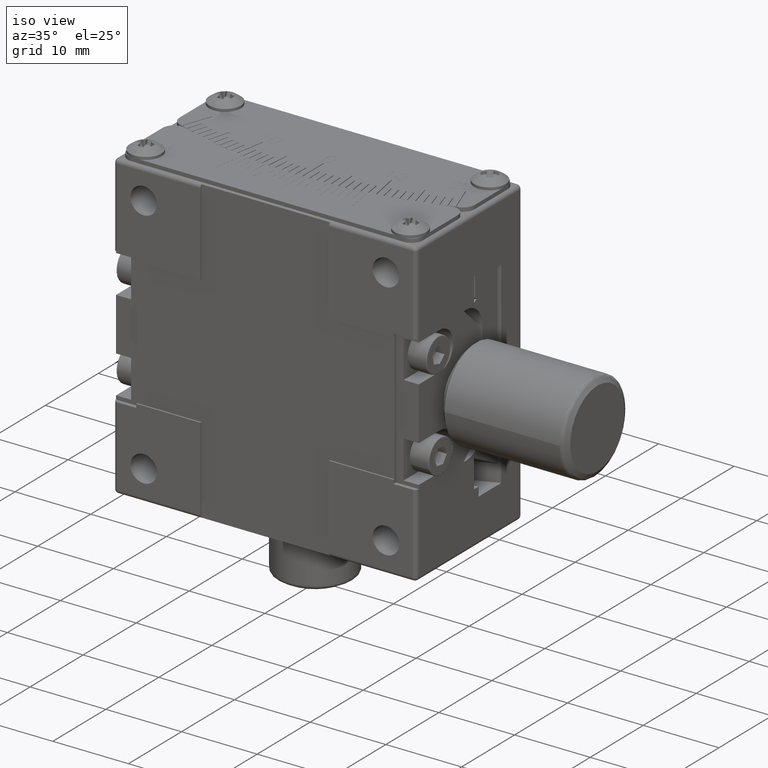
[diagram: clean part render]
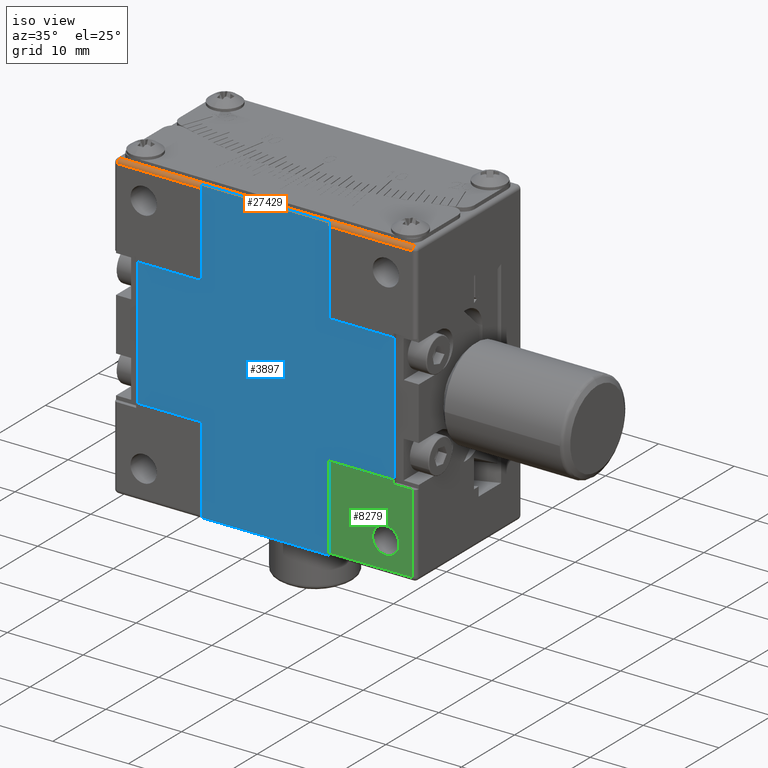
[diagram: same view with three faces highlighted in distinct colors, each labeled with its STEP entity id]
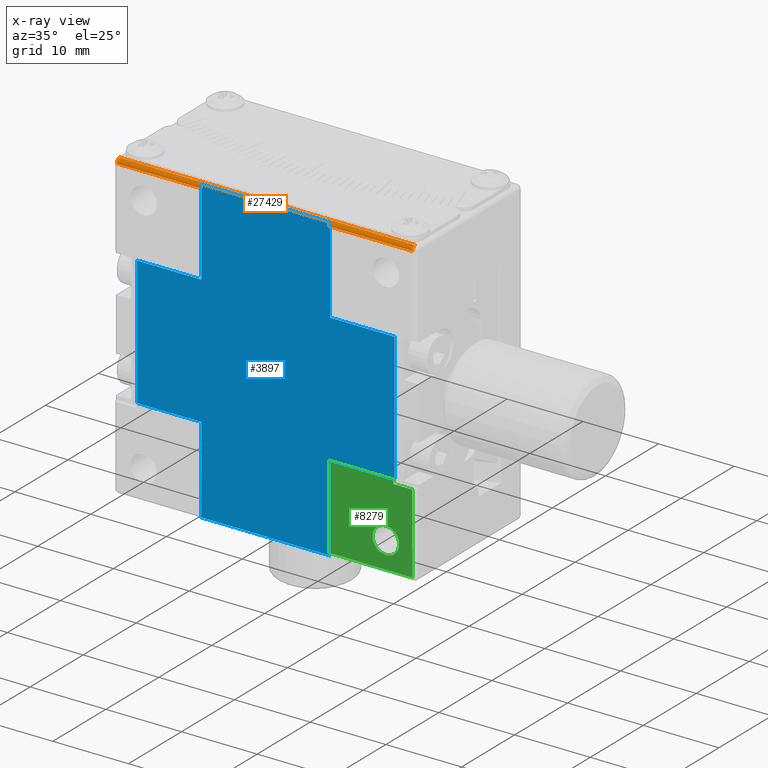
[diagram: x-ray of the same camera — body ghosted, the three highlighted faces saturated]
A machine part, iso view with three faces highlighted in distinct colors.
The next image is the same camera in x-ray (body ghosted, the three faces saturated) — at least one of them is partly hidden behind the body in this view.
Their STEP definitions:

[orange] entity #27429 — the highlighted cylindrical surface (edge-blend (fillet) strip) has radius 0.5 mm, axis along (-1, -0, 0).
#648 = LINE ( 'NONE', #7372, #7498 ) ;
#747 = CARTESIAN_POINT ( 'NONE',  ( -8.500000000000000000, 20.50000000000000000, 19.50000000000000000 ) ) ;
#1528 = EDGE_CURVE ( 'NONE', #13665, #24232, #19736, .T. ) ;
#1709 = CARTESIAN_POINT ( 'NONE',  ( 8.500000000000000000, 20.19999999999999929, 19.90000000000000213 ) ) ;
#2234 = VERTEX_POINT ( 'NONE', #16001 ) ;
#2356 = LINE ( 'NONE', #11845, #25931 ) ;
#2505 = DIRECTION ( 'NONE',  ( -1.000000000000000000, -1.734723475976804876E-16, 0.000000000000000000 ) ) ;
#3081 = CARTESIAN_POINT ( 'NONE',  ( 8.500000000000000000, 20.00000000000000000, 19.50000000000000000 ) ) ;
#3795 = CARTESIAN_POINT ( 'NONE',  ( 19.50000000000000000, 20.50000000000000000, 19.50000000000000000 ) ) ;
#4117 = LINE ( 'NONE', #13024, #23295 ) ;
#4355 = DIRECTION ( 'NONE',  ( -6.938893903907222067E-15, 1.000000000000000000, 0.000000000000000000 ) ) ;
#4733 = LINE ( 'NONE', #15820, #18624 ) ;
#5039 = CARTESIAN_POINT ( 'NONE',  ( 8.500000000000000000, 20.50000000000000000, 19.50000000000000000 ) ) ;
#5180 = CARTESIAN_POINT ( 'NONE',  ( -19.50000000000000000, 20.50000000000000000, 19.50000000000000000 ) ) ;
#5409 = ORIENTED_EDGE ( 'NONE', *, *, #1528, .F. ) ;
#5805 = LINE ( 'NONE', #1709, #14067 ) ;
#6770 = DIRECTION ( 'NONE',  ( 1.000000000000000000, 1.734723475976804876E-16, 0.000000000000000000 ) ) ;
#6789 = DIRECTION ( 'NONE',  ( 1.000000000000000000, 0.000000000000000000, 0.000000000000000000 ) ) ;
#6873 = CARTESIAN_POINT ( 'NONE',  ( -8.500000000000000000, 20.19999999999999929, 19.90000000000000213 ) ) ;
#7332 = DIRECTION ( 'NONE',  ( 1.000000000000000000, 0.000000000000000000, 0.000000000000000000 ) ) ;
#7372 = CARTESIAN_POINT ( 'NONE',  ( -18.00000000000000000, 20.50000000000000000, 20.00000000000000000 ) ) ;
#7498 = VECTOR ( 'NONE', #6789, 1000.000000000000000 ) ;
#7622 = DIRECTION ( 'NONE',  ( 0.000000000000000000, 0.000000000000000000, 1.000000000000000000 ) ) ;
#7817 = AXIS2_PLACEMENT_3D ( 'NONE', #5039, #25628, #12042 ) ;
#8306 = EDGE_CURVE ( 'NONE', #19631, #19520, #20415, .T. ) ;
#9128 = AXIS2_PLACEMENT_3D ( 'NONE', #3795, #12704, #4355 ) ;
#9210 = EDGE_CURVE ( 'NONE', #2234, #11803, #648, .T. ) ;
#10506 = EDGE_CURVE ( 'NONE', #24474, #19631, #14631, .T. ) ;
#10562 = VERTEX_POINT ( 'NONE', #14776 ) ;
#11265 = DIRECTION ( 'NONE',  ( 1.000000000000000000, 1.734723475976804876E-16, 0.000000000000000000 ) ) ;
#11418 = ORIENTED_EDGE ( 'NONE', *, *, #10506, .F. ) ;
#11426 = CIRCLE ( 'NONE', #18892, 0.5000000000000004441 ) ;
#11711 = EDGE_CURVE ( 'NONE', #19520, #13665, #5805, .T. ) ;
#11803 = VERTEX_POINT ( 'NONE', #19815 ) ;
#11845 = CARTESIAN_POINT ( 'NONE',  ( -20.00000000000000000, 20.00000000000000000, 19.50000000000000000 ) ) ;
#12042 = DIRECTION ( 'NONE',  ( 0.000000000000000000, 0.000000000000000000, -1.000000000000000000 ) ) ;
#12369 = DIRECTION ( 'NONE',  ( -1.000000000000000000, -1.734723475976804876E-16, 0.000000000000000000 ) ) ;
#12704 = DIRECTION ( 'NONE',  ( -1.000000000000000000, -6.938893903907220489E-15, 0.000000000000000000 ) ) ;
#12751 = ORIENTED_EDGE ( 'NONE', *, *, #9210, .F. ) ;
#12956 = CARTESIAN_POINT ( 'NONE',  ( 19.50000000000000000, 20.50000000000000000, 20.00000000000000000 ) ) ;
#13024 = CARTESIAN_POINT ( 'NONE',  ( -8.500000000000000000, 20.50000000000000000, 20.00000000000000000 ) ) ;
#13665 = VERTEX_POINT ( 'NONE', #6873 ) ;
#14067 = VECTOR ( 'NONE', #12369, 1000.000000000000000 ) ;
#14110 = CARTESIAN_POINT ( 'NONE',  ( -8.500000000000000000, 20.00000000000000000, 19.50000000000000000 ) ) ;
#14619 = DIRECTION ( 'NONE',  ( 1.734723475976799452E-16, -1.000000000000000000, 0.000000000000000000 ) ) ;
#14631 = LINE ( 'NONE', #25456, #18673 ) ;
#14763 = DIRECTION ( 'NONE',  ( -1.000000000000000000, -1.734723475976799945E-16, 0.000000000000000000 ) ) ;
#14776 = CARTESIAN_POINT ( 'NONE',  ( -19.50000000000000000, 20.00000000000000000, 19.50000000000000000 ) ) ;
#14946 = EDGE_CURVE ( 'NONE', #23362, #2234, #4117, .T. ) ;
#15820 = CARTESIAN_POINT ( 'NONE',  ( -8.500000000000000000, 20.50000000000000000, 20.00000000000000000 ) ) ;
#16001 = CARTESIAN_POINT ( 'NONE',  ( -18.00000000000000000, 20.50000000000000000, 20.00000000000000000 ) ) ;
#16130 = ORIENTED_EDGE ( 'NONE', *, *, #21720, .F. ) ;
#17070 = ORIENTED_EDGE ( 'NONE', *, *, #14946, .F. ) ;
#17185 = ORIENTED_EDGE ( 'NONE', *, *, #25794, .F. ) ;
#17276 = AXIS2_PLACEMENT_3D ( 'NONE', #21777, #14763, #14619 ) ;
#18624 = VECTOR ( 'NONE', #6770, 1000.000000000000000 ) ;
#18673 = VECTOR ( 'NONE', #20938, 1000.000000000000000 ) ;
#18892 = AXIS2_PLACEMENT_3D ( 'NONE', #5180, #23137, #27521 ) ;
#19414 = CIRCLE ( 'NONE', #9128, 0.5000000000000004441 ) ;
#19446 = CYLINDRICAL_SURFACE ( 'NONE', #17276, 0.5000000000000004441 ) ;
#19520 = VERTEX_POINT ( 'NONE', #24850 ) ;
#19631 = VERTEX_POINT ( 'NONE', #3081 ) ;
#19736 = CIRCLE ( 'NONE', #28152, 0.5000000000000004441 ) ;
#19815 = CARTESIAN_POINT ( 'NONE',  ( 18.00000000000000000, 20.50000000000000000, 20.00000000000000000 ) ) ;
#20415 = CIRCLE ( 'NONE', #7817, 0.5000000000000004441 ) ;
#20461 = EDGE_CURVE ( 'NONE', #24232, #10562, #2356, .T. ) ;
#20938 = DIRECTION ( 'NONE',  ( -1.000000000000000000, -1.734723475976804876E-16, 0.000000000000000000 ) ) ;
#21123 = VERTEX_POINT ( 'NONE', #12956 ) ;
#21720 = EDGE_CURVE ( 'NONE', #10562, #23362, #11426, .T. ) ;
#21777 = CARTESIAN_POINT ( 'NONE',  ( 1.032160468206200063E-14, 20.50000000000000000, 19.50000000000000000 ) ) ;
#22671 = EDGE_CURVE ( 'NONE', #24474, #21123, #19414, .T. ) ;
#22750 = ORIENTED_EDGE ( 'NONE', *, *, #8306, .F. ) ;
#23137 = DIRECTION ( 'NONE',  ( -1.000000000000000000, 0.000000000000000000, 0.000000000000000000 ) ) ;
#23295 = VECTOR ( 'NONE', #11265, 1000.000000000000000 ) ;
#23362 = VERTEX_POINT ( 'NONE', #24740 ) ;
#23967 = FACE_OUTER_BOUND ( 'NONE', #27230, .T. ) ;
#24232 = VERTEX_POINT ( 'NONE', #14110 ) ;
#24474 = VERTEX_POINT ( 'NONE', #25183 ) ;
#24740 = CARTESIAN_POINT ( 'NONE',  ( -19.50000000000000000, 20.50000000000000000, 20.00000000000000000 ) ) ;
#24850 = CARTESIAN_POINT ( 'NONE',  ( 8.500000000000000000, 20.19999999999999929, 19.90000000000000213 ) ) ;
#25116 = ORIENTED_EDGE ( 'NONE', *, *, #22671, .T. ) ;
#25183 = CARTESIAN_POINT ( 'NONE',  ( 19.50000000000000000, 20.00000000000000000, 19.50000000000000000 ) ) ;
#25456 = CARTESIAN_POINT ( 'NONE',  ( 8.500000000000000000, 20.00000000000000000, 19.50000000000000000 ) ) ;
#25628 = DIRECTION ( 'NONE',  ( -1.000000000000000000, 0.000000000000000000, 0.000000000000000000 ) ) ;
#25794 = EDGE_CURVE ( 'NONE', #11803, #21123, #4733, .T. ) ;
#25931 = VECTOR ( 'NONE', #2505, 1000.000000000000000 ) ;
#26552 = ORIENTED_EDGE ( 'NONE', *, *, #11711, .F. ) ;
#27230 = EDGE_LOOP ( 'NONE', ( #25116, #17185, #12751, #17070, #16130, #27386, #5409, #26552, #22750, #11418 ) ) ;
#27386 = ORIENTED_EDGE ( 'NONE', *, *, #20461, .F. ) ;
#27429 = ADVANCED_FACE ( 'NONE', ( #23967 ), #19446, .T. ) ;
#27521 = DIRECTION ( 'NONE',  ( 0.000000000000000000, 0.000000000000000000, 1.000000000000000000 ) ) ;
#28152 = AXIS2_PLACEMENT_3D ( 'NONE', #747, #7332, #7622 ) ;

[blue] entity #3897 — the highlighted planar face has unit normal (0, -1, 0).
#106 = CARTESIAN_POINT ( 'NONE',  ( 8.500000000000000000, 20.19999999999999929, -8.500000000000000000 ) ) ;
#381 = CARTESIAN_POINT ( 'NONE',  ( 17.00000000000000000, 20.19999999999999929, 20.00000000000000000 ) ) ;
#983 = CARTESIAN_POINT ( 'NONE',  ( -20.00000000000000000, 20.19999999999999929, -8.500000000000000000 ) ) ;
#1154 = VERTEX_POINT ( 'NONE', #11295 ) ;
#1709 = CARTESIAN_POINT ( 'NONE',  ( 8.500000000000000000, 20.19999999999999929, 19.90000000000000213 ) ) ;
#2370 = VERTEX_POINT ( 'NONE', #7388 ) ;
#2384 = EDGE_CURVE ( 'NONE', #2370, #18655, #14391, .T. ) ;
#2746 = CARTESIAN_POINT ( 'NONE',  ( -8.500000000000000000, 20.19999999999999929, 20.00000000000000000 ) ) ;
#3179 = LINE ( 'NONE', #2746, #24785 ) ;
#3409 = FACE_OUTER_BOUND ( 'NONE', #21133, .T. ) ;
#3436 = CARTESIAN_POINT ( 'NONE',  ( -17.00000000000000000, 20.19999999999999929, 20.00000000000000000 ) ) ;
#3897 = ADVANCED_FACE ( 'NONE', ( #3409 ), #14079, .T. ) ;
#4241 = ORIENTED_EDGE ( 'NONE', *, *, #14736, .T. ) ;
#4568 = EDGE_CURVE ( 'NONE', #23775, #22565, #20413, .T. ) ;
#5111 = VECTOR ( 'NONE', #5641, 1000.000000000000000 ) ;
#5275 = CARTESIAN_POINT ( 'NONE',  ( 17.00000000000000000, 20.19999999999999929, -8.500000000000000000 ) ) ;
#5401 = VECTOR ( 'NONE', #9590, 1000.000000000000000 ) ;
#5641 = DIRECTION ( 'NONE',  ( -1.000000000000000000, 0.000000000000000000, 3.016910393003140393E-16 ) ) ;
#5805 = LINE ( 'NONE', #1709, #14067 ) ;
#6340 = VECTOR ( 'NONE', #23889, 1000.000000000000000 ) ;
#6591 = VECTOR ( 'NONE', #25247, 1000.000000000000000 ) ;
#6873 = CARTESIAN_POINT ( 'NONE',  ( -8.500000000000000000, 20.19999999999999929, 19.90000000000000213 ) ) ;
#7294 = VECTOR ( 'NONE', #21910, 1000.000000000000000 ) ;
#7388 = CARTESIAN_POINT ( 'NONE',  ( -8.500000000000000000, 20.19999999999999929, 8.500000000000000000 ) ) ;
#7511 = DIRECTION ( 'NONE',  ( 0.000000000000000000, -1.000000000000000000, 0.000000000000000000 ) ) ;
#8602 = CARTESIAN_POINT ( 'NONE',  ( 8.500000000000000000, 20.19999999999999929, -8.500000000000000000 ) ) ;
#9590 = DIRECTION ( 'NONE',  ( 0.000000000000000000, 0.000000000000000000, -1.000000000000000000 ) ) ;
#9838 = CARTESIAN_POINT ( 'NONE',  ( 8.500000000000000000, 20.19999999999999929, 20.00000000000000000 ) ) ;
#10134 = EDGE_CURVE ( 'NONE', #26919, #18708, #13403, .T. ) ;
#10216 = VERTEX_POINT ( 'NONE', #106 ) ;
#10729 = ORIENTED_EDGE ( 'NONE', *, *, #14918, .T. ) ;
#11295 = CARTESIAN_POINT ( 'NONE',  ( 8.500000000000000000, 20.19999999999999929, 8.500000000000000000 ) ) ;
#11313 = EDGE_CURVE ( 'NONE', #15477, #15440, #18529, .T. ) ;
#11366 = CARTESIAN_POINT ( 'NONE',  ( -8.500000000000000000, 20.19999999999999929, -8.500000000000000000 ) ) ;
#11581 = CARTESIAN_POINT ( 'NONE',  ( 8.500000000000000000, 20.19999999999999929, 8.500000000000000000 ) ) ;
#11610 = EDGE_CURVE ( 'NONE', #13665, #2370, #3179, .T. ) ;
#11711 = EDGE_CURVE ( 'NONE', #19520, #13665, #5805, .T. ) ;
#11739 = CARTESIAN_POINT ( 'NONE',  ( 8.500000000000000000, 20.19999999999999929, 20.00000000000000000 ) ) ;
#12059 = DIRECTION ( 'NONE',  ( 0.000000000000000000, 0.000000000000000000, 1.000000000000000000 ) ) ;
#12226 = DIRECTION ( 'NONE',  ( 0.000000000000000000, 0.000000000000000000, -1.000000000000000000 ) ) ;
#12369 = DIRECTION ( 'NONE',  ( -1.000000000000000000, -1.734723475976804876E-16, 0.000000000000000000 ) ) ;
#12613 = CARTESIAN_POINT ( 'NONE',  ( -17.00000000000000000, 20.19999999999999929, 8.500000000000000000 ) ) ;
#12838 = ORIENTED_EDGE ( 'NONE', *, *, #11711, .T. ) ;
#13403 = LINE ( 'NONE', #17797, #19140 ) ;
#13665 = VERTEX_POINT ( 'NONE', #6873 ) ;
#13705 = CARTESIAN_POINT ( 'NONE',  ( -17.00000000000000000, 20.19999999999999929, -8.500000000000000000 ) ) ;
#14067 = VECTOR ( 'NONE', #12369, 1000.000000000000000 ) ;
#14079 = PLANE ( 'NONE',  #18770 ) ;
#14352 = DIRECTION ( 'NONE',  ( -1.000000000000000000, 0.000000000000000000, -1.508455196501574881E-16 ) ) ;
#14358 = DIRECTION ( 'NONE',  ( 0.000000000000000000, 0.000000000000000000, -1.000000000000000000 ) ) ;
#14391 = LINE ( 'NONE', #14675, #5111 ) ;
#14675 = CARTESIAN_POINT ( 'NONE',  ( -20.00000000000000000, 20.19999999999999929, 8.500000000000000000 ) ) ;
#14736 = EDGE_CURVE ( 'NONE', #23775, #1154, #16684, .T. ) ;
#14918 = EDGE_CURVE ( 'NONE', #15440, #26919, #15213, .T. ) ;
#15213 = LINE ( 'NONE', #24421, #15810 ) ;
#15440 = VERTEX_POINT ( 'NONE', #11366 ) ;
#15477 = VERTEX_POINT ( 'NONE', #13705 ) ;
#15780 = DIRECTION ( 'NONE',  ( 1.508455196501569950E-16, 0.000000000000000000, -1.000000000000000000 ) ) ;
#15810 = VECTOR ( 'NONE', #15780, 1000.000000000000000 ) ;
#15967 = LINE ( 'NONE', #11739, #21187 ) ;
#16684 = LINE ( 'NONE', #11581, #26092 ) ;
#17027 = ORIENTED_EDGE ( 'NONE', *, *, #11313, .T. ) ;
#17214 = VECTOR ( 'NONE', #12059, 1000.000000000000000 ) ;
#17231 = LINE ( 'NONE', #8602, #7294 ) ;
#17797 = CARTESIAN_POINT ( 'NONE',  ( -8.500000000000000000, 20.19999999999999929, -19.90000000000000213 ) ) ;
#18529 = LINE ( 'NONE', #983, #6591 ) ;
#18655 = VERTEX_POINT ( 'NONE', #12613 ) ;
#18708 = VERTEX_POINT ( 'NONE', #28674 ) ;
#18770 = AXIS2_PLACEMENT_3D ( 'NONE', #9838, #7511, #14358 ) ;
#18792 = CARTESIAN_POINT ( 'NONE',  ( 8.500000000000000000, 20.19999999999999929, -8.500000000000000000 ) ) ;
#19140 = VECTOR ( 'NONE', #22323, 1000.000000000000000 ) ;
#19520 = VERTEX_POINT ( 'NONE', #24850 ) ;
#20413 = LINE ( 'NONE', #381, #5401 ) ;
#20718 = ORIENTED_EDGE ( 'NONE', *, *, #24444, .T. ) ;
#20778 = EDGE_CURVE ( 'NONE', #18708, #10216, #17231, .T. ) ;
#20789 = ORIENTED_EDGE ( 'NONE', *, *, #25634, .F. ) ;
#20977 = ORIENTED_EDGE ( 'NONE', *, *, #20778, .T. ) ;
#21133 = EDGE_LOOP ( 'NONE', ( #28621, #20977, #23195, #24388, #4241, #20718, #12838, #23117, #28134, #20789, #17027, #10729 ) ) ;
#21187 = VECTOR ( 'NONE', #27225, 1000.000000000000000 ) ;
#21414 = LINE ( 'NONE', #18792, #6340 ) ;
#21910 = DIRECTION ( 'NONE',  ( -1.508455196501569950E-16, 0.000000000000000000, 1.000000000000000000 ) ) ;
#22323 = DIRECTION ( 'NONE',  ( 1.000000000000000000, 1.734723475976804876E-16, 0.000000000000000000 ) ) ;
#22368 = CARTESIAN_POINT ( 'NONE',  ( 17.00000000000000000, 20.19999999999999929, 8.500000000000000000 ) ) ;
#22565 = VERTEX_POINT ( 'NONE', #5275 ) ;
#23117 = ORIENTED_EDGE ( 'NONE', *, *, #11610, .T. ) ;
#23142 = EDGE_CURVE ( 'NONE', #10216, #22565, #21414, .T. ) ;
#23195 = ORIENTED_EDGE ( 'NONE', *, *, #23142, .T. ) ;
#23775 = VERTEX_POINT ( 'NONE', #22368 ) ;
#23889 = DIRECTION ( 'NONE',  ( 1.000000000000000000, 0.000000000000000000, -1.508455196501574881E-16 ) ) ;
#24388 = ORIENTED_EDGE ( 'NONE', *, *, #4568, .F. ) ;
#24421 = CARTESIAN_POINT ( 'NONE',  ( -8.500000000000000000, 20.19999999999999929, -8.500000000000000000 ) ) ;
#24444 = EDGE_CURVE ( 'NONE', #1154, #19520, #15967, .T. ) ;
#24785 = VECTOR ( 'NONE', #12226, 1000.000000000000000 ) ;
#24850 = CARTESIAN_POINT ( 'NONE',  ( 8.500000000000000000, 20.19999999999999929, 19.90000000000000213 ) ) ;
#25247 = DIRECTION ( 'NONE',  ( 1.000000000000000000, 0.000000000000000000, 0.000000000000000000 ) ) ;
#25335 = CARTESIAN_POINT ( 'NONE',  ( -8.500000000000000000, 20.19999999999999929, -19.90000000000000213 ) ) ;
#25359 = LINE ( 'NONE', #3436, #17214 ) ;
#25634 = EDGE_CURVE ( 'NONE', #15477, #18655, #25359, .T. ) ;
#26092 = VECTOR ( 'NONE', #14352, 1000.000000000000000 ) ;
#26919 = VERTEX_POINT ( 'NONE', #25335 ) ;
#27225 = DIRECTION ( 'NONE',  ( -3.016910393003140393E-16, 0.000000000000000000, 1.000000000000000000 ) ) ;
#28134 = ORIENTED_EDGE ( 'NONE', *, *, #2384, .T. ) ;
#28621 = ORIENTED_EDGE ( 'NONE', *, *, #10134, .T. ) ;
#28674 = CARTESIAN_POINT ( 'NONE',  ( 8.500000000000000000, 20.19999999999999929, -19.90000000000000213 ) ) ;

[green] entity #8279 — the highlighted planar face has unit normal (-0, 1, 0).
#119 = CARTESIAN_POINT ( 'NONE',  ( 17.00000000000000000, 20.00000000000000000, -8.500000000000000000 ) ) ;
#531 = CARTESIAN_POINT ( 'NONE',  ( 19.50000000000000000, 20.00000000000000000, 20.00000000000000000 ) ) ;
#639 = LINE ( 'NONE', #18033, #3022 ) ;
#1265 = AXIS2_PLACEMENT_3D ( 'NONE', #14094, #6937, #27098 ) ;
#1352 = EDGE_CURVE ( 'NONE', #13109, #5841, #23992, .T. ) ;
#1414 = CARTESIAN_POINT ( 'NONE',  ( -20.00000000000000000, 20.00000000000000000, -19.50000000000000000 ) ) ;
#1583 = CARTESIAN_POINT ( 'NONE',  ( 19.50000000000000000, 20.00000000000000000, -9.000000000000000000 ) ) ;
#2181 = DIRECTION ( 'NONE',  ( 0.000000000000000000, 0.000000000000000000, -1.000000000000000000 ) ) ;
#2928 = EDGE_CURVE ( 'NONE', #16424, #13109, #15602, .T. ) ;
#3022 = VECTOR ( 'NONE', #9261, 1000.000000000000000 ) ;
#3975 = CARTESIAN_POINT ( 'NONE',  ( 17.00000000000000000, 20.00000000000000000, -9.000000000000000000 ) ) ;
#4513 = CARTESIAN_POINT ( 'NONE',  ( 17.00000000000000000, 20.00000000000000000, 9.000000000000000000 ) ) ;
#4741 = CARTESIAN_POINT ( 'NONE',  ( 16.00000000000000000, 20.00000000000000000, -14.25000000000000000 ) ) ;
#5355 = DIRECTION ( 'NONE',  ( 0.000000000000000000, 0.000000000000000000, 1.000000000000000000 ) ) ;
#5841 = VERTEX_POINT ( 'NONE', #1583 ) ;
#5897 = VERTEX_POINT ( 'NONE', #27605 ) ;
#5976 = EDGE_CURVE ( 'NONE', #6987, #26735, #27834, .T. ) ;
#6708 = EDGE_CURVE ( 'NONE', #26735, #6987, #14632, .T. ) ;
#6909 = VECTOR ( 'NONE', #2181, 1000.000000000000000 ) ;
#6937 = DIRECTION ( 'NONE',  ( -1.734723475976804876E-16, 1.000000000000000000, 0.000000000000000000 ) ) ;
#6987 = VERTEX_POINT ( 'NONE', #26983 ) ;
#7558 = LINE ( 'NONE', #1414, #21044 ) ;
#8279 = ADVANCED_FACE ( 'NONE', ( #20387, #18187 ), #25201, .F. ) ;
#8912 = CARTESIAN_POINT ( 'NONE',  ( 16.00000000000000000, 20.00000000000000000, -16.00000000000000000 ) ) ;
#8925 = VECTOR ( 'NONE', #10687, 1000.000000000000000 ) ;
#8983 = EDGE_CURVE ( 'NONE', #5897, #16813, #7558, .T. ) ;
#9261 = DIRECTION ( 'NONE',  ( 1.000000000000000000, 0.000000000000000000, -1.508455196501574881E-16 ) ) ;
#10225 = CARTESIAN_POINT ( 'NONE',  ( 8.500000000000000000, 20.00000000000000000, -8.500000000000000000 ) ) ;
#10687 = DIRECTION ( 'NONE',  ( 1.000000000000000000, 0.000000000000000000, 0.000000000000000000 ) ) ;
#10902 = CARTESIAN_POINT ( 'NONE',  ( 19.50000000000000000, 20.00000000000000000, -19.50000000000000000 ) ) ;
#11685 = EDGE_LOOP ( 'NONE', ( #22711, #19588, #26521, #16926, #26620, #12218 ) ) ;
#12103 = CARTESIAN_POINT ( 'NONE',  ( 16.00000000000000000, 20.00000000000000000, -16.00000000000000000 ) ) ;
#12218 = ORIENTED_EDGE ( 'NONE', *, *, #18567, .F. ) ;
#12540 = DIRECTION ( 'NONE',  ( 0.000000000000000000, 1.000000000000000000, 0.000000000000000000 ) ) ;
#12658 = VERTEX_POINT ( 'NONE', #18672 ) ;
#13109 = VERTEX_POINT ( 'NONE', #20838 ) ;
#14094 = CARTESIAN_POINT ( 'NONE',  ( -20.00000000000000000, 20.00000000000000000, 20.00000000000000000 ) ) ;
#14632 = CIRCLE ( 'NONE', #18378, 1.749999999999999778 ) ;
#14758 = AXIS2_PLACEMENT_3D ( 'NONE', #12103, #12540, #21031 ) ;
#14953 = VECTOR ( 'NONE', #27915, 1000.000000000000000 ) ;
#14971 = VECTOR ( 'NONE', #5355, 1000.000000000000000 ) ;
#15602 = LINE ( 'NONE', #4513, #6909 ) ;
#16320 = EDGE_CURVE ( 'NONE', #5897, #12658, #23528, .T. ) ;
#16424 = VERTEX_POINT ( 'NONE', #119 ) ;
#16813 = VERTEX_POINT ( 'NONE', #10902 ) ;
#16904 = EDGE_CURVE ( 'NONE', #16813, #5841, #27407, .T. ) ;
#16926 = ORIENTED_EDGE ( 'NONE', *, *, #1352, .F. ) ;
#18033 = CARTESIAN_POINT ( 'NONE',  ( 8.500000000000000000, 20.00000000000000000, -8.500000000000000000 ) ) ;
#18187 = FACE_OUTER_BOUND ( 'NONE', #11685, .T. ) ;
#18378 = AXIS2_PLACEMENT_3D ( 'NONE', #8912, #26730, #28784 ) ;
#18567 = EDGE_CURVE ( 'NONE', #12658, #16424, #639, .T. ) ;
#18672 = CARTESIAN_POINT ( 'NONE',  ( 8.500000000000000000, 20.00000000000000000, -8.500000000000000000 ) ) ;
#19588 = ORIENTED_EDGE ( 'NONE', *, *, #8983, .T. ) ;
#20387 = FACE_BOUND ( 'NONE', #25125, .T. ) ;
#20838 = CARTESIAN_POINT ( 'NONE',  ( 17.00000000000000000, 20.00000000000000000, -9.000000000000000000 ) ) ;
#21031 = DIRECTION ( 'NONE',  ( 0.000000000000000000, 0.000000000000000000, 1.000000000000000000 ) ) ;
#21044 = VECTOR ( 'NONE', #23618, 1000.000000000000000 ) ;
#21097 = ORIENTED_EDGE ( 'NONE', *, *, #5976, .T. ) ;
#22030 = ORIENTED_EDGE ( 'NONE', *, *, #6708, .T. ) ;
#22711 = ORIENTED_EDGE ( 'NONE', *, *, #16320, .F. ) ;
#23528 = LINE ( 'NONE', #10225, #14953 ) ;
#23618 = DIRECTION ( 'NONE',  ( 1.000000000000000000, 1.734723475976804876E-16, 0.000000000000000000 ) ) ;
#23992 = LINE ( 'NONE', #3975, #8925 ) ;
#25125 = EDGE_LOOP ( 'NONE', ( #22030, #21097 ) ) ;
#25201 = PLANE ( 'NONE',  #1265 ) ;
#26521 = ORIENTED_EDGE ( 'NONE', *, *, #16904, .T. ) ;
#26620 = ORIENTED_EDGE ( 'NONE', *, *, #2928, .F. ) ;
#26730 = DIRECTION ( 'NONE',  ( 0.000000000000000000, 1.000000000000000000, 0.000000000000000000 ) ) ;
#26735 = VERTEX_POINT ( 'NONE', #4741 ) ;
#26983 = CARTESIAN_POINT ( 'NONE',  ( 16.00000000000000000, 20.00000000000000000, -17.75000000000000000 ) ) ;
#27098 = DIRECTION ( 'NONE',  ( 1.000000000000000000, 1.734723475976804876E-16, 0.000000000000000000 ) ) ;
#27407 = LINE ( 'NONE', #531, #14971 ) ;
#27605 = CARTESIAN_POINT ( 'NONE',  ( 8.500000000000000000, 20.00000000000000000, -19.50000000000000000 ) ) ;
#27834 = CIRCLE ( 'NONE', #14758, 1.749999999999999778 ) ;
#27915 = DIRECTION ( 'NONE',  ( -1.508455196501569950E-16, 0.000000000000000000, 1.000000000000000000 ) ) ;
#28784 = DIRECTION ( 'NONE',  ( 0.000000000000000000, 0.000000000000000000, 1.000000000000000000 ) ) ;